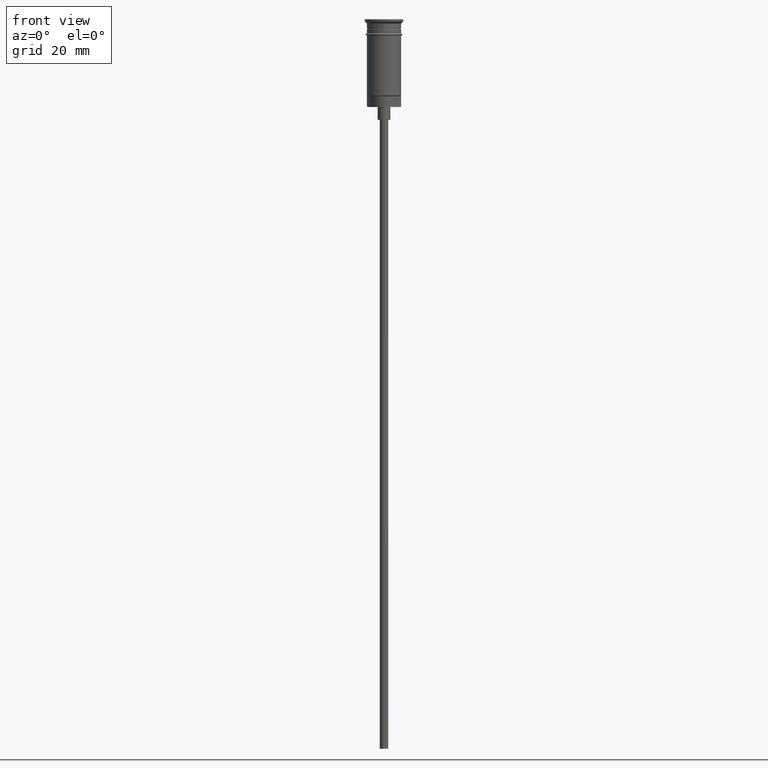
[diagram: clean part render]
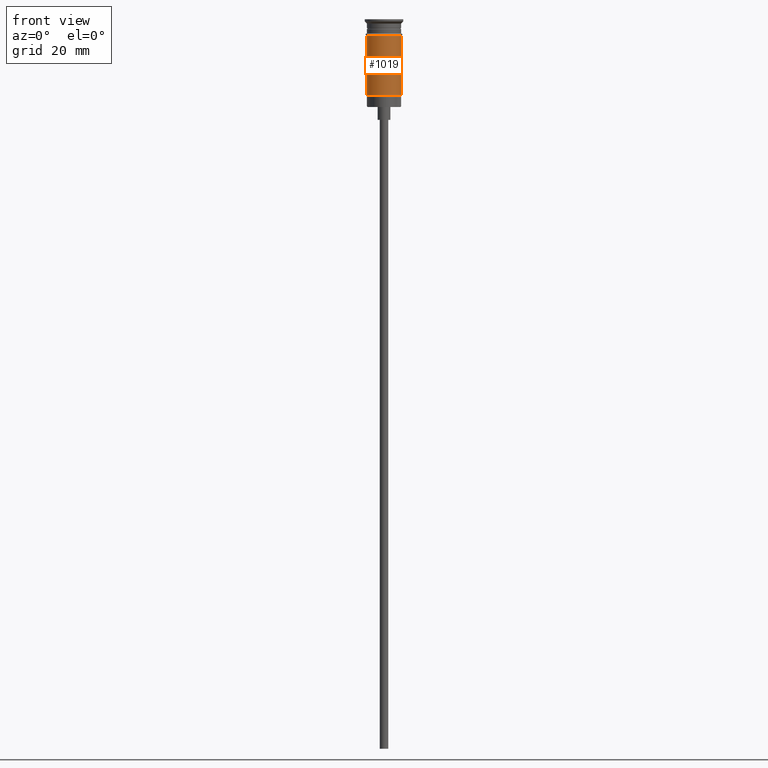
[diagram: same view with one face highlighted and labeled with its STEP entity id]
A machine part, front view. The second image highlights one B-rep face of the part: STEP entity #1019.
In plain terms, the highlighted cylindrical surface (edge-blend (fillet) strip) has radius 4 mm, axis along (-0, -0, 1).
Its self-contained STEP definition (entity closure, byte-faithful):
#12 = DIRECTION ( 'NONE',  ( -0.000000000000000000, -0.000000000000000000, 1.000000000000000000 ) ) ;
#136 = DIRECTION ( 'NONE',  ( -0.000000000000000000, -0.000000000000000000, 1.000000000000000000 ) ) ;
#159 = CYLINDRICAL_SURFACE ( 'NONE', #1322, 4.000000000000000000 ) ;
#381 = DIRECTION ( 'NONE',  ( -0.000000000000000000, -0.000000000000000000, 1.000000000000000000 ) ) ;
#386 = EDGE_CURVE ( 'NONE', #1459, #1476, #1027, .T. ) ;
#397 = CARTESIAN_POINT ( 'NONE',  ( 0.000000000000000000, 0.000000000000000000, 0.000000000000000000 ) ) ;
#412 = DIRECTION ( 'NONE',  ( 1.000000000000000000, 0.000000000000000000, 0.000000000000000000 ) ) ;
#425 = CARTESIAN_POINT ( 'NONE',  ( 4.000000000000000000, 4.898587196589412829E-16, -17.79999999999998295 ) ) ;
#426 = EDGE_CURVE ( 'NONE', #1476, #1381, #482, .T. ) ;
#482 = LINE ( 'NONE', #1129, #1364 ) ;
#507 = VERTEX_POINT ( 'NONE', #543 ) ;
#543 = CARTESIAN_POINT ( 'NONE',  ( -4.000000000000000000, 4.898587196589412829E-16, -3.799999999999998490 ) ) ;
#572 = CIRCLE ( 'NONE', #1268, 4.000000000000000000 ) ;
#595 = DIRECTION ( 'NONE',  ( -0.000000000000000000, -0.000000000000000000, 1.000000000000000000 ) ) ;
#596 = AXIS2_PLACEMENT_3D ( 'NONE', #729, #136, #1378 ) ;
#619 = CARTESIAN_POINT ( 'NONE',  ( 0.000000000000000000, 0.000000000000000000, -3.799999999999998490 ) ) ;
#679 = CARTESIAN_POINT ( 'NONE',  ( -3.999999999999997335, 0.000000000000000000, -17.79999999999998295 ) ) ;
#695 = LINE ( 'NONE', #965, #1588 ) ;
#729 = CARTESIAN_POINT ( 'NONE',  ( 0.000000000000000000, 0.000000000000000000, -17.79999999999998295 ) ) ;
#787 = CARTESIAN_POINT ( 'NONE',  ( 4.000000000000000000, 0.000000000000000000, -3.799999999999998490 ) ) ;
#832 = EDGE_CURVE ( 'NONE', #507, #1381, #572, .T. ) ;
#920 = FACE_OUTER_BOUND ( 'NONE', #1221, .T. ) ;
#965 = CARTESIAN_POINT ( 'NONE',  ( -4.000000000000000000, 4.898587196589412829E-16, 0.000000000000000000 ) ) ;
#982 = ORIENTED_EDGE ( 'NONE', *, *, #832, .F. ) ;
#1019 = ADVANCED_FACE ( 'NONE', ( #920 ), #159, .T. ) ;
#1027 = CIRCLE ( 'NONE', #596, 4.000000000000000000 ) ;
#1115 = DIRECTION ( 'NONE',  ( 1.000000000000000000, 0.000000000000000000, 0.000000000000000000 ) ) ;
#1125 = ORIENTED_EDGE ( 'NONE', *, *, #1501, .F. ) ;
#1129 = CARTESIAN_POINT ( 'NONE',  ( 4.000000000000000000, 0.000000000000000000, 0.000000000000000000 ) ) ;
#1146 = ORIENTED_EDGE ( 'NONE', *, *, #386, .T. ) ;
#1221 = EDGE_LOOP ( 'NONE', ( #1125, #1146, #1587, #982 ) ) ;
#1268 = AXIS2_PLACEMENT_3D ( 'NONE', #619, #381, #1115 ) ;
#1322 = AXIS2_PLACEMENT_3D ( 'NONE', #397, #1408, #412 ) ;
#1364 = VECTOR ( 'NONE', #12, 1000.000000000000000 ) ;
#1378 = DIRECTION ( 'NONE',  ( -1.000000000000000000, 0.000000000000000000, 0.000000000000000000 ) ) ;
#1381 = VERTEX_POINT ( 'NONE', #787 ) ;
#1408 = DIRECTION ( 'NONE',  ( -0.000000000000000000, -0.000000000000000000, 1.000000000000000000 ) ) ;
#1459 = VERTEX_POINT ( 'NONE', #679 ) ;
#1476 = VERTEX_POINT ( 'NONE', #425 ) ;
#1501 = EDGE_CURVE ( 'NONE', #1459, #507, #695, .T. ) ;
#1587 = ORIENTED_EDGE ( 'NONE', *, *, #426, .T. ) ;
#1588 = VECTOR ( 'NONE', #595, 1000.000000000000000 ) ;